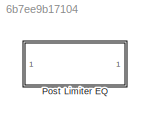
MODEL slx_6b7ee9b17104
KIND library
CONFIG AbsTol = auto
CONFIG EnableMultiTasking = off
CONFIG FixedStep = auto
CONFIG MaxStep = auto
CONFIG MinStep = auto
CONFIG RelTol = 1e-3
CONFIG SampleTimeConstraint = Unconstrained
CONFIG SolverName = VariableStepAuto
CONFIG StartTime = 0.0
CONFIG StopTime = 10.0
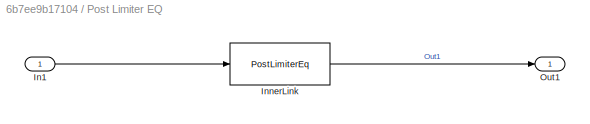
BLOCK [SubSystem] Post Limiter EQ
BLOCK [Inport] Post Limiter EQ/In1
BLOCK [Reference] Post Limiter EQ/InnerLink  REF=PostLimiterEqBtc/PostLimiterEq
  SourceBlock = PostLimiterEqBtc/PostLimiterEq
  SourceProductName = Bose Blocklib
  SourceType = Blocklib PostLimiterEq
BLOCK [Outport] Post Limiter EQ/Out1
LINE Post Limiter EQ/In1:1 -> Post Limiter EQ/InnerLink:1
LINE Post Limiter EQ/InnerLink:1 -> Post Limiter EQ/Out1:1
